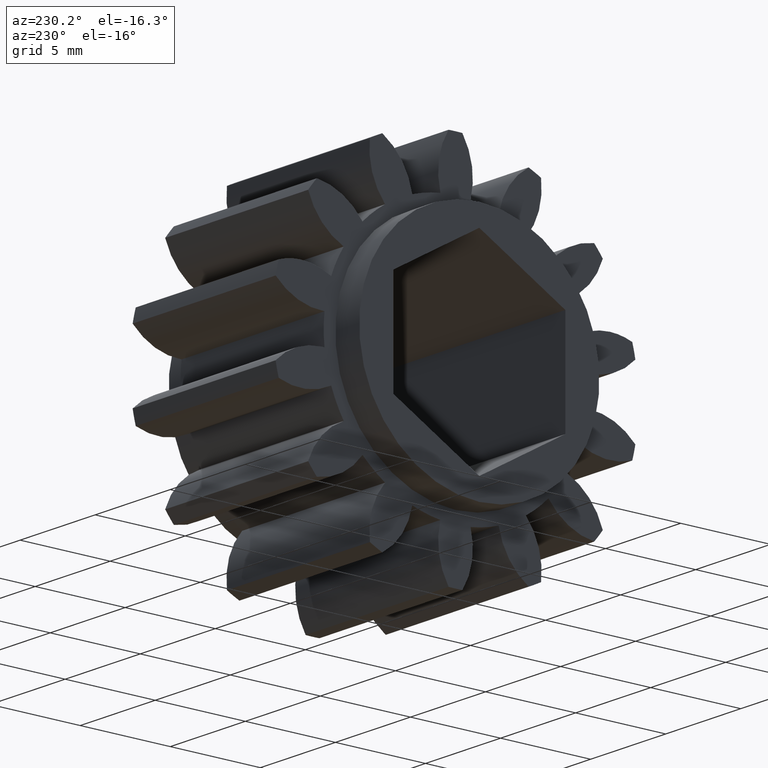
[diagram: clean part render]
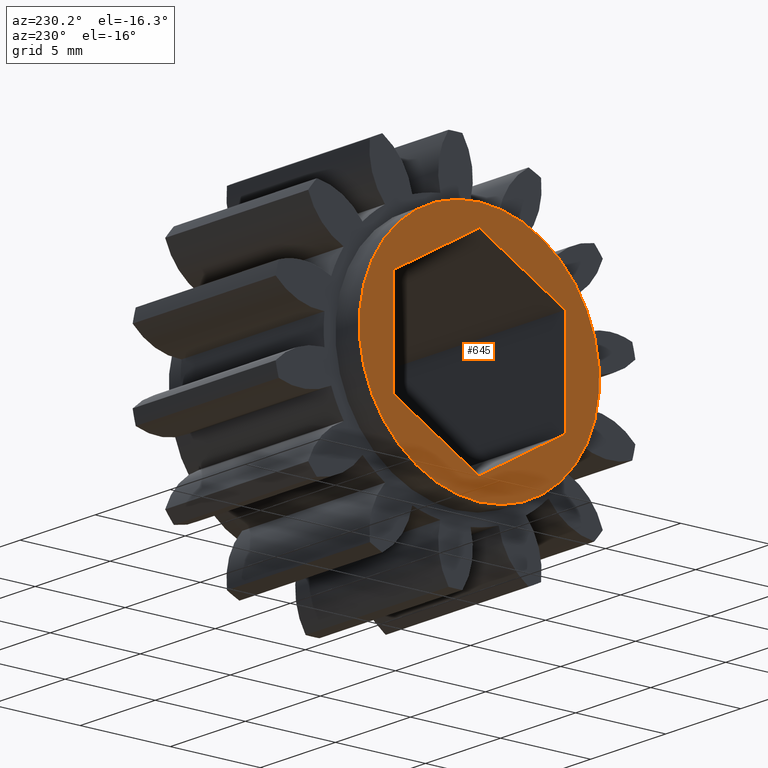
[diagram: same view with one face highlighted and labeled with its STEP entity id]
A machine part, auxiliary view. The second image highlights one B-rep face of the part: STEP entity #645.
In plain terms, the highlighted planar face has unit normal (1, 0, 0).
Its self-contained STEP definition (entity closure, byte-faithful):
#5 = FACE_BOUND ( 'NONE', #2473, .T. ) ;
#13 = VERTEX_POINT ( 'NONE', #2136 ) ;
#29 = CARTESIAN_POINT ( 'NONE',  ( -0.06250000000000001400, 3.747030021515363700E-017, -0.2170837012152993000 ) ) ;
#56 = CARTESIAN_POINT ( 'NONE',  ( -0.06250000000000001400, -0.1879999999999999700, 0.1085418506076495400 ) ) ;
#82 = DIRECTION ( 'NONE',  ( 0.0000000000000000000, 1.573038405446012800E-016, -1.000000000000000000 ) ) ;
#99 = ORIENTED_EDGE ( 'NONE', *, *, #1650, .T. ) ;
#182 = FACE_OUTER_BOUND ( 'NONE', #2557, .T. ) ;
#203 = DIRECTION ( 'NONE',  ( 0.0000000000000000000, 0.8660254037844386000, -0.5000000000000000000 ) ) ;
#237 = CARTESIAN_POINT ( 'NONE',  ( -0.06250000000000001400, -0.1879999999999999400, -0.1085418506076496500 ) ) ;
#327 = CARTESIAN_POINT ( 'NONE',  ( -0.06250000000000001400, -0.1879999999999999400, -0.1085418506076496500 ) ) ;
#588 = AXIS2_PLACEMENT_3D ( 'NONE', #2039, #2034, #1998 ) ;
#645 = ADVANCED_FACE ( 'NONE', ( #5, #182 ), #2103, .F. ) ;
#730 = VERTEX_POINT ( 'NONE', #1914 ) ;
#759 = CARTESIAN_POINT ( 'NONE',  ( -0.06250000000000000000, 0.0000000000000000000, -0.2625000000000000100 ) ) ;
#792 = DIRECTION ( 'NONE',  ( 0.0000000000000000000, 0.8660254037844384900, 0.5000000000000002200 ) ) ;
#826 = CARTESIAN_POINT ( 'NONE',  ( -0.06250000000000001400, 3.747030021515363700E-017, -0.2170837012152993000 ) ) ;
#834 = DIRECTION ( 'NONE',  ( 0.0000000000000000000, 0.0000000000000000000, -1.000000000000000000 ) ) ;
#835 = DIRECTION ( 'NONE',  ( 1.000000000000000000, 0.0000000000000000000, 0.0000000000000000000 ) ) ;
#838 = CARTESIAN_POINT ( 'NONE',  ( -0.06250000000000000000, 0.0000000000000000000, 0.0000000000000000000 ) ) ;
#869 = EDGE_CURVE ( 'NONE', #1215, #13, #2569, .T. ) ;
#890 = CARTESIAN_POINT ( 'NONE',  ( -0.06250000000000001400, 0.1880000000000000600, 0.1085418506076496800 ) ) ;
#933 = CARTESIAN_POINT ( 'NONE',  ( -0.06250000000000001400, 1.367217236287623700E-016, 0.2170837012152993000 ) ) ;
#939 = AXIS2_PLACEMENT_3D ( 'NONE', #838, #835, #834 ) ;
#992 = CARTESIAN_POINT ( 'NONE',  ( -0.06250000000000000000, 0.1880000000000000300, -0.1085418506076496100 ) ) ;
#1152 = AXIS2_PLACEMENT_3D ( 'NONE', #2094, #2106, #2085 ) ;
#1215 = VERTEX_POINT ( 'NONE', #933 ) ;
#1253 = EDGE_CURVE ( 'NONE', #730, #1342, #2394, .T. ) ;
#1304 = EDGE_CURVE ( 'NONE', #1854, #1977, #2384, .T. ) ;
#1342 = VERTEX_POINT ( 'NONE', #759 ) ;
#1389 = DIRECTION ( 'NONE',  ( 0.0000000000000000000, -0.8660254037844386000, 0.5000000000000001100 ) ) ;
#1432 = ORIENTED_EDGE ( 'NONE', *, *, #1253, .F. ) ;
#1454 = CARTESIAN_POINT ( 'NONE',  ( -0.06250000000000001400, 0.1880000000000000600, 0.1085418506076496800 ) ) ;
#1506 = CARTESIAN_POINT ( 'NONE',  ( -0.06250000000000001400, 0.1880000000000000600, -0.1085418506076495600 ) ) ;
#1602 = VERTEX_POINT ( 'NONE', #327 ) ;
#1650 = EDGE_CURVE ( 'NONE', #1602, #1854, #2160, .T. ) ;
#1703 = DIRECTION ( 'NONE',  ( 0.0000000000000000000, -0.8660254037844386000, -0.5000000000000001100 ) ) ;
#1759 = VECTOR ( 'NONE', #2142, 39.37007874015748100 ) ;
#1798 = CARTESIAN_POINT ( 'NONE',  ( -0.06250000000000001400, 1.367217236287623700E-016, 0.2170837012152993000 ) ) ;
#1805 = EDGE_CURVE ( 'NONE', #13, #1602, #2110, .T. ) ;
#1807 = LINE ( 'NONE', #1506, #1759 ) ;
#1854 = VERTEX_POINT ( 'NONE', #29 ) ;
#1897 = ORIENTED_EDGE ( 'NONE', *, *, #869, .T. ) ;
#1914 = CARTESIAN_POINT ( 'NONE',  ( -0.06250000000000000000, 3.214697847761801800E-017, 0.2625000000000000100 ) ) ;
#1971 = VECTOR ( 'NONE', #1389, 39.37007874015748100 ) ;
#1977 = VERTEX_POINT ( 'NONE', #992 ) ;
#1993 = LINE ( 'NONE', #1454, #1971 ) ;
#1998 = DIRECTION ( 'NONE',  ( 0.0000000000000000000, 0.0000000000000000000, -1.000000000000000000 ) ) ;
#2034 = DIRECTION ( 'NONE',  ( 1.000000000000000000, 0.0000000000000000000, 0.0000000000000000000 ) ) ;
#2035 = CIRCLE ( 'NONE', #588, 0.2625000000000000100 ) ;
#2039 = CARTESIAN_POINT ( 'NONE',  ( -0.06250000000000000000, 0.0000000000000000000, 0.0000000000000000000 ) ) ;
#2085 = DIRECTION ( 'NONE',  ( 0.0000000000000000000, 0.0000000000000000000, -1.000000000000000000 ) ) ;
#2092 = VECTOR ( 'NONE', #82, 39.37007874015748100 ) ;
#2094 = CARTESIAN_POINT ( 'NONE',  ( -0.06250000000000000000, 0.0000000000000000000, 0.0000000000000000000 ) ) ;
#2103 = PLANE ( 'NONE',  #1152 ) ;
#2106 = DIRECTION ( 'NONE',  ( 1.000000000000000000, 0.0000000000000000000, 0.0000000000000000000 ) ) ;
#2110 = LINE ( 'NONE', #56, #2092 ) ;
#2120 = EDGE_CURVE ( 'NONE', #1342, #730, #2035, .T. ) ;
#2136 = CARTESIAN_POINT ( 'NONE',  ( -0.06250000000000001400, -0.1879999999999999700, 0.1085418506076495400 ) ) ;
#2137 = EDGE_CURVE ( 'NONE', #2342, #1215, #1993, .T. ) ;
#2140 = VECTOR ( 'NONE', #203, 39.37007874015748900 ) ;
#2142 = DIRECTION ( 'NONE',  ( 0.0000000000000000000, 0.0000000000000000000, 1.000000000000000000 ) ) ;
#2160 = LINE ( 'NONE', #237, #2140 ) ;
#2235 = EDGE_CURVE ( 'NONE', #1977, #2342, #1807, .T. ) ;
#2333 = ORIENTED_EDGE ( 'NONE', *, *, #2137, .T. ) ;
#2339 = ORIENTED_EDGE ( 'NONE', *, *, #2120, .F. ) ;
#2342 = VERTEX_POINT ( 'NONE', #890 ) ;
#2373 = VECTOR ( 'NONE', #792, 39.37007874015749600 ) ;
#2384 = LINE ( 'NONE', #826, #2373 ) ;
#2394 = CIRCLE ( 'NONE', #939, 0.2625000000000000100 ) ;
#2456 = ORIENTED_EDGE ( 'NONE', *, *, #1805, .T. ) ;
#2473 = EDGE_LOOP ( 'NONE', ( #2456, #99, #2520, #2495, #2333, #1897 ) ) ;
#2495 = ORIENTED_EDGE ( 'NONE', *, *, #2235, .T. ) ;
#2520 = ORIENTED_EDGE ( 'NONE', *, *, #1304, .T. ) ;
#2557 = EDGE_LOOP ( 'NONE', ( #2339, #1432 ) ) ;
#2565 = VECTOR ( 'NONE', #1703, 39.37007874015748900 ) ;
#2569 = LINE ( 'NONE', #1798, #2565 ) ;